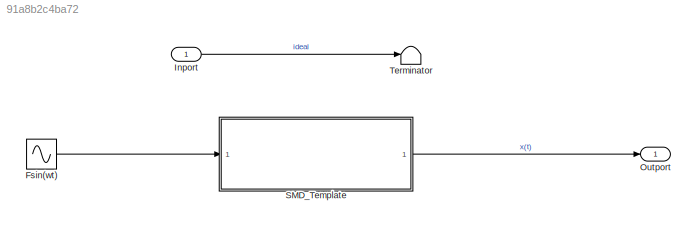
MODEL slx_91a8b2c4ba72
KIND model
CONFIG AbsTol = auto
CONFIG EnableMultiTasking = off
CONFIG FixedStep = auto
CONFIG MaxStep = 0.01
CONFIG MinStep = auto
CONFIG RelTol = 1e-3
CONFIG SampleTimeConstraint = Unconstrained
CONFIG SolverName = VariableStepAuto
CONFIG StartTime = 0.0
CONFIG StopTime = 5
WORKSPACE source: mxarray member
WORKSPACE b = 0.5
WORKSPACE k = 1
WORKSPACE m = 10
BLOCK [Sin] Fsin(wt)
  Amplitude = 100
  Frequency = 20
  SampleTime = 0
BLOCK [Inport] Inport
BLOCK [Outport] Outport
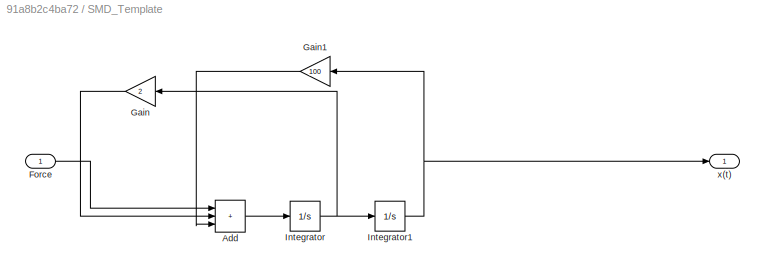
BLOCK [SubSystem] SMD_Template
BLOCK [Sum] SMD_Template/Add
  IconShape = rectangular
  Inputs = +++
BLOCK [Inport] SMD_Template/Force
BLOCK [Gain] SMD_Template/Gain
  Gain = 2
  NameLocation = top
BLOCK [Gain] SMD_Template/Gain1
  Gain = 100
  NameLocation = top
BLOCK [Integrator] SMD_Template/Integrator
  InitialCondition = 0.02
BLOCK [Integrator] SMD_Template/Integrator1
BLOCK [Outport] SMD_Template/x(t)
BLOCK [Terminator] Terminator
LINE Fsin(wt):1 -> SMD_Template:1
LINE Inport:1 -> Terminator:1
LINE SMD_Template/Add:1 -> SMD_Template/Integrator:1
LINE SMD_Template/Force:1 -> SMD_Template/Add:1
LINE SMD_Template/Gain1:1 -> SMD_Template/Add:3
LINE SMD_Template/Gain:1 -> SMD_Template/Add:2
NET SMD_Template/Integrator1:1 -> SMD_Template/Gain1:1, SMD_Template/x(t):1
NET SMD_Template/Integrator:1 -> SMD_Template/Gain:1, SMD_Template/Integrator1:1
LINE SMD_Template:1 -> Outport:1
note: NET lines group one-source signal fan-out (src -> all destinations, sorted); 1:1 wires keep LINE
